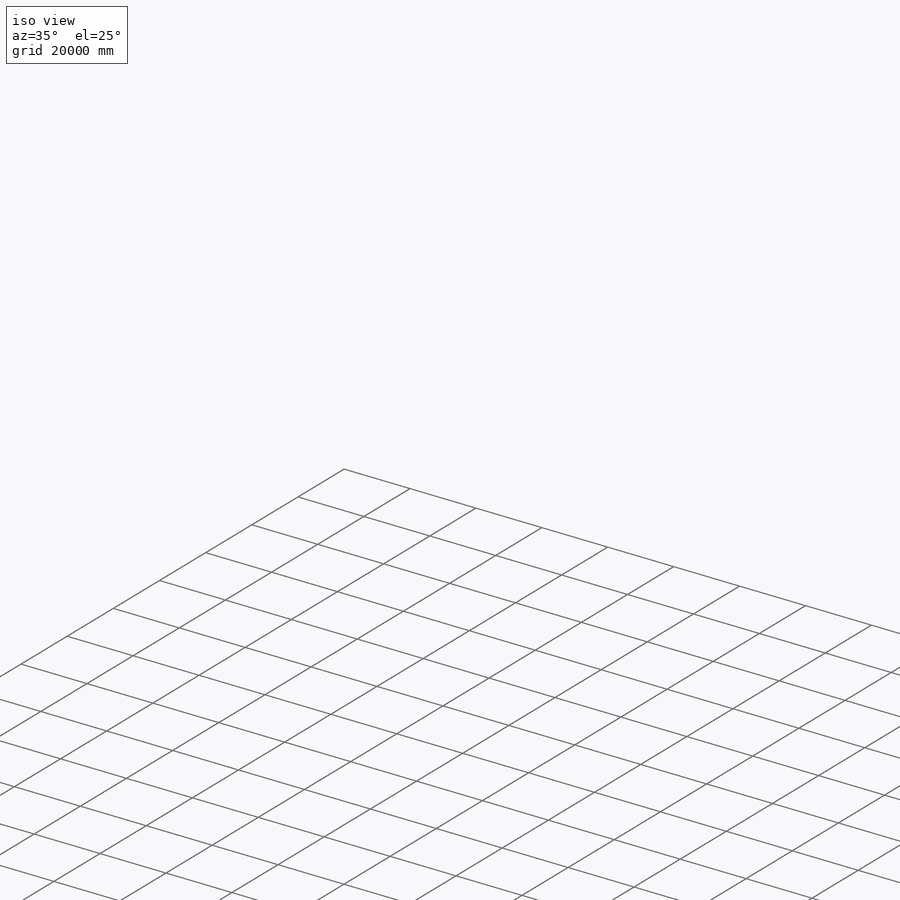
[diagram: iso view]
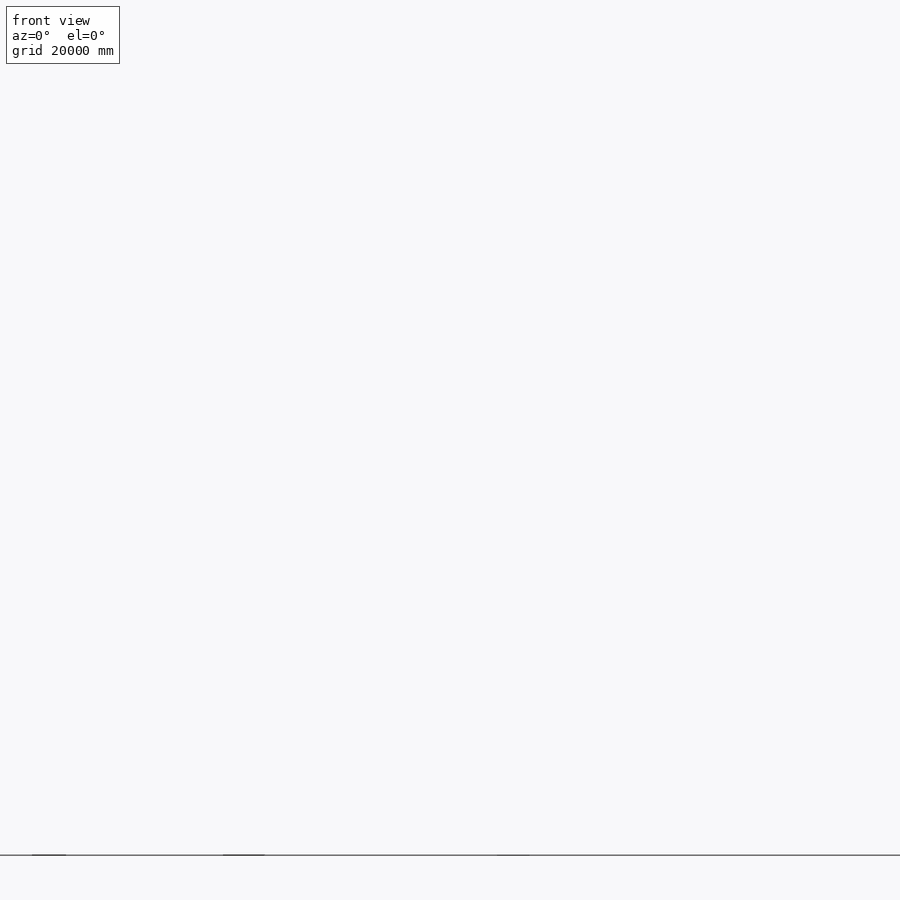
[diagram: front view]
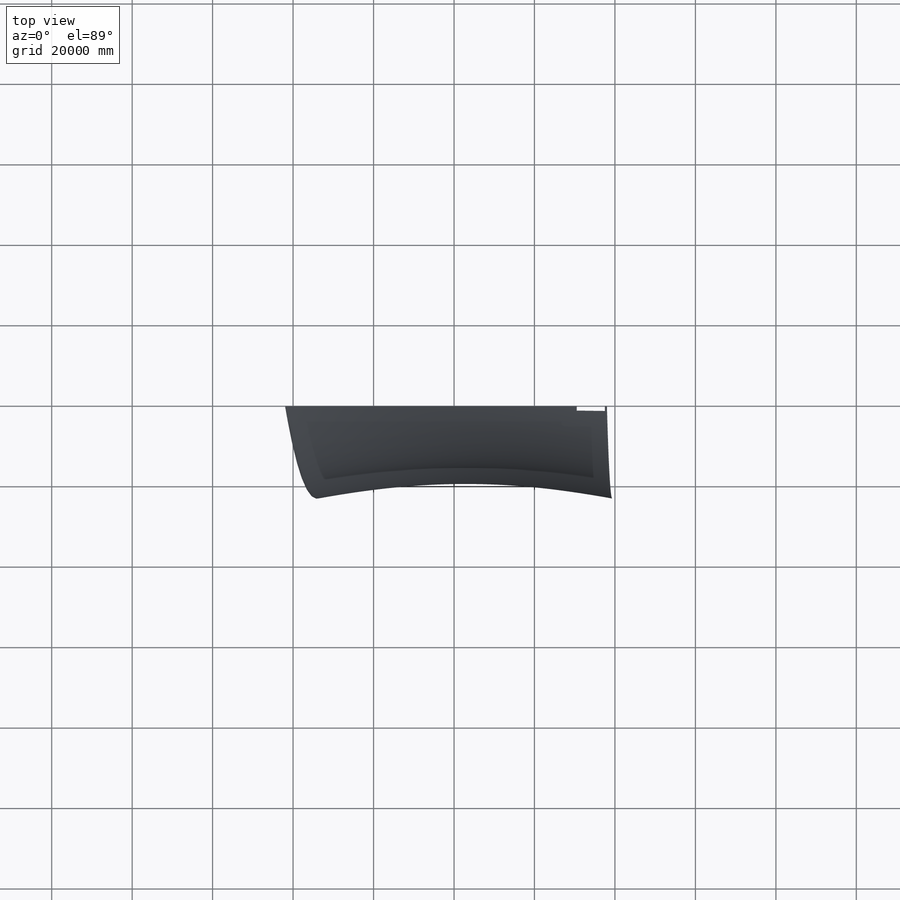
[diagram: top view]
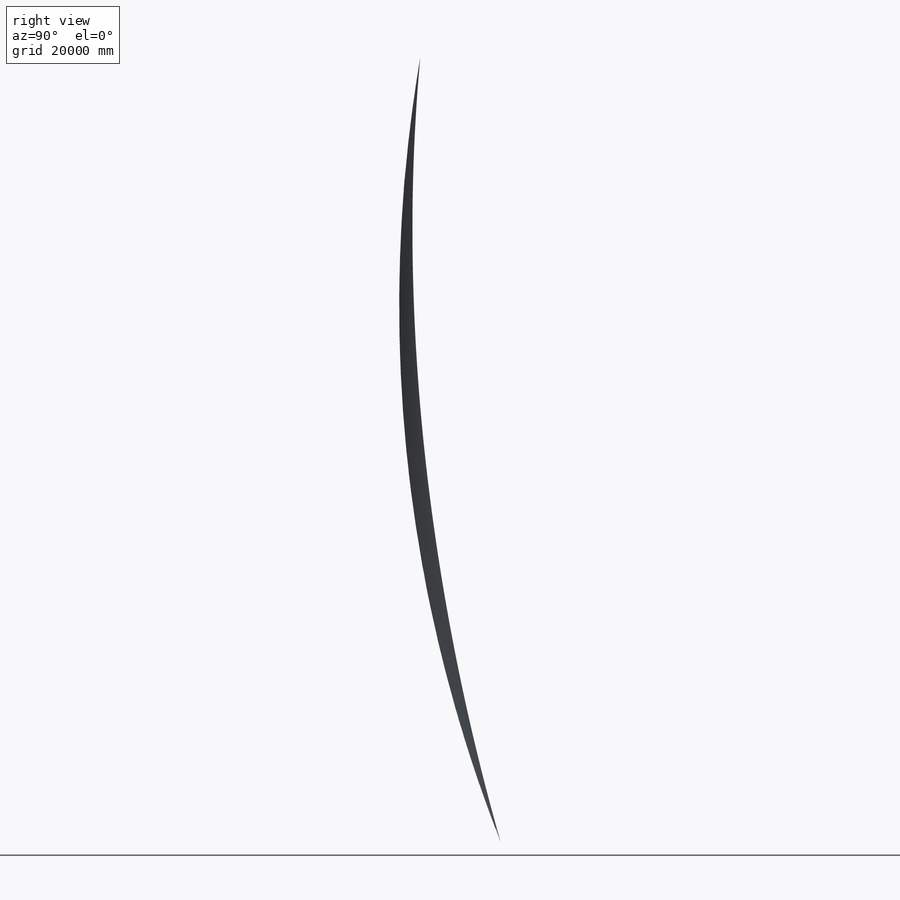
[diagram: right view]
SOLIDWORKS PART (.sldprt)
format: sldprt  version: not decoded by parser v0  size: 1,143,808 bytes
history: native  units: mm
features: sketch x5, extrude x2, cut_extrude x2, material x1 (+12 scaffold rows collapsed)
feature tree (22):
  scaffold x12  (default folders/planes/origin — collapsed)
  material  "Material <not specified>"
  sketch  "3DSketch2"  dims[c1.D5=~365488.699287mm c1.D1=365000.0mm c2.D1=~365488.699287mm c3.D1=~365488.699287mm c3.D3=365000.0mm c4.D1=~365488.699287mm c5.D1=~18.604443mm c5.D6=20000.0mm c5.D2=~91.919731mm c6.D1=195000.0mm c6.D3=~33043.480493mm c7.D1=20000.0mm c7.D4=~38749.340393mm c8.D1=20000.0mm c8.D6=80000.0mm c9.D1=195000.0mm c9.D3=76000.0mm c10.D1=70000.0mm]
  extrude  "Boss-Extrude9"  Depth=1500mm
  extrude  "Boss-Extrude11"  [1 undecoded]
  sketch  "3DSketch2<7>"
  sketch  "3DSketch4"  dims[D1=75000.0mm]
  cut_extrude  "Cut-Extrude5"  Depth=300000mm
  sketch  "Sketch1"  dims[D1=3300.0mm]
  sketch  "3DSketch6"
  cut_extrude  "Cut-Extrude6"  Depth=3000mm
decode coverage: 6 of 9 modeling features carry decoded parameters
note: ~ marks probable driven/reference dimensions
note: 1 parameter value undecoded
note: suppression state not decoded; provenance and decode notes live in map.json
